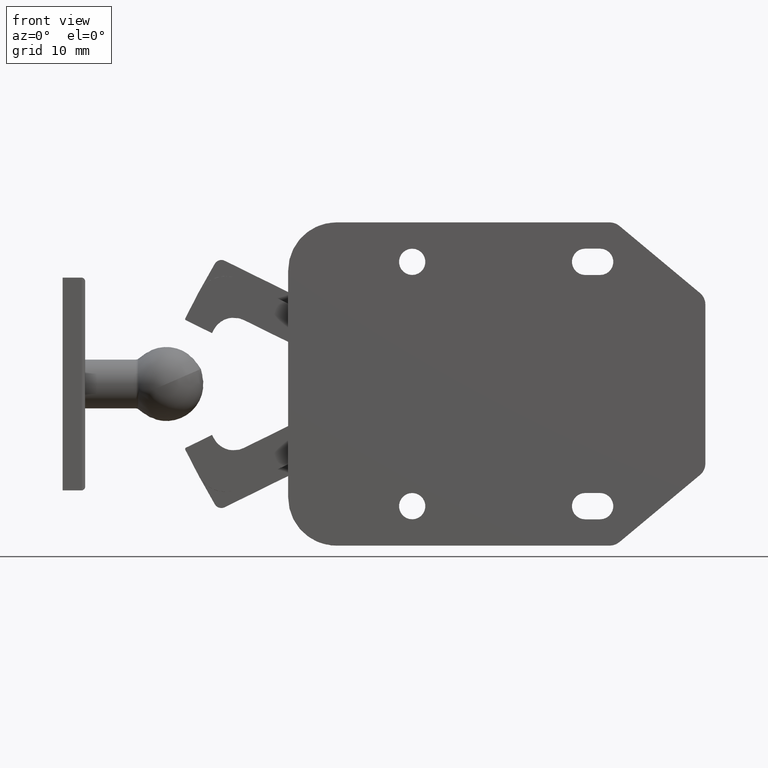
[diagram: clean part render]
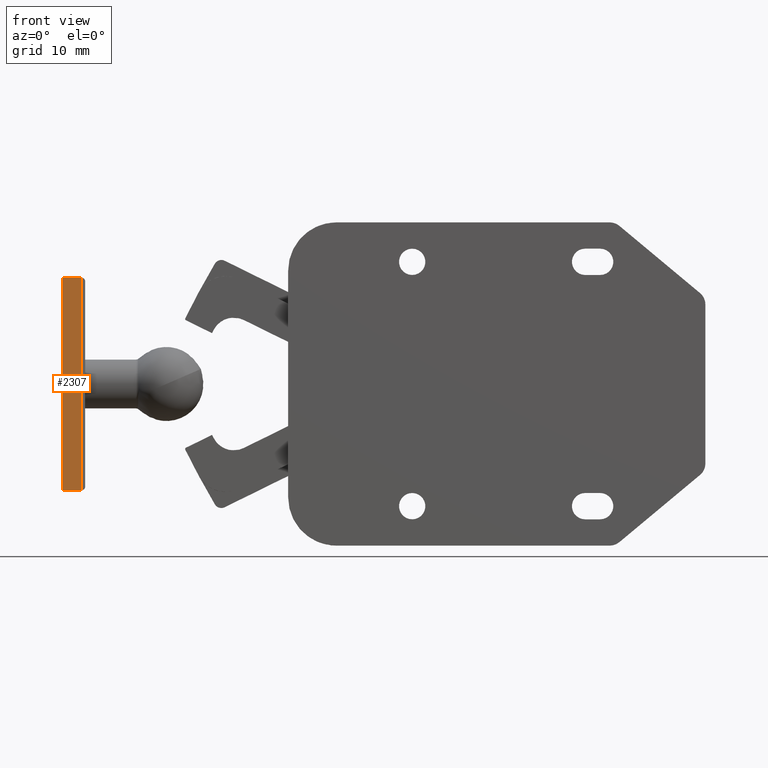
[diagram: same view with one face highlighted and labeled with its STEP entity id]
A machine part, front view. The second image highlights one B-rep face of the part: STEP entity #2307.
In plain terms, the highlighted planar face has unit normal (0, -1, -0).
Its self-contained STEP definition (entity closure, byte-faithful):
#142=PLANE('',#2561);
#304=LINE('',#3912,#500);
#311=LINE('',#3925,#507);
#345=LINE('',#4028,#541);
#347=LINE('',#4031,#543);
#500=VECTOR('',#3139,28.3);
#507=VECTOR('',#3152,2.5);
#541=VECTOR('',#3258,28.3);
#543=VECTOR('',#3262,2.5);
#728=FACE_OUTER_BOUND('',#886,.T.);
#886=EDGE_LOOP('',(#2163,#2164,#2165,#2166));
#1161=VERTEX_POINT('',#3895);
#1166=VERTEX_POINT('',#3906);
#1170=VERTEX_POINT('',#3924);
#1203=VERTEX_POINT('',#4027);
#1465=EDGE_CURVE('',#1161,#1166,#304,.T.);
#1472=EDGE_CURVE('',#1170,#1166,#311,.T.);
#1522=EDGE_CURVE('',#1203,#1170,#345,.T.);
#1524=EDGE_CURVE('',#1161,#1203,#347,.T.);
#2163=ORIENTED_EDGE('',*,*,#1465,.F.);
#2164=ORIENTED_EDGE('',*,*,#1524,.T.);
#2165=ORIENTED_EDGE('',*,*,#1522,.T.);
#2166=ORIENTED_EDGE('',*,*,#1472,.T.);
#2307=ADVANCED_FACE('',(#728),#142,.T.);
#2561=AXIS2_PLACEMENT_3D('',#4032,#3263,#3264);
#3139=DIRECTION('',(1.,1.83697019872103E-16,0.));
#3152=DIRECTION('',(0.,1.,0.));
#3258=DIRECTION('',(1.,1.76537230064071E-16,0.));
#3262=DIRECTION('',(0.,-1.,0.));
#3263=DIRECTION('center_axis',(0.,0.,1.));
#3264=DIRECTION('ref_axis',(1.,0.,0.));
#3895=CARTESIAN_POINT('',(-14.15,-0.5,6.));
#3906=CARTESIAN_POINT('',(14.15,-0.499999999999995,6.));
#3912=CARTESIAN_POINT('',(7.075,-0.499999999999996,6.));
#3924=CARTESIAN_POINT('',(14.15,-3.,6.));
#3925=CARTESIAN_POINT('',(14.15,5.19862566238051E-15,6.));
#4027=CARTESIAN_POINT('',(-14.15,-3.,6.));
#4028=CARTESIAN_POINT('',(14.15,-3.,6.));
#4031=CARTESIAN_POINT('',(-14.15,-3.,6.));
#4032=CARTESIAN_POINT('Origin',(0.,-1.5,6.));